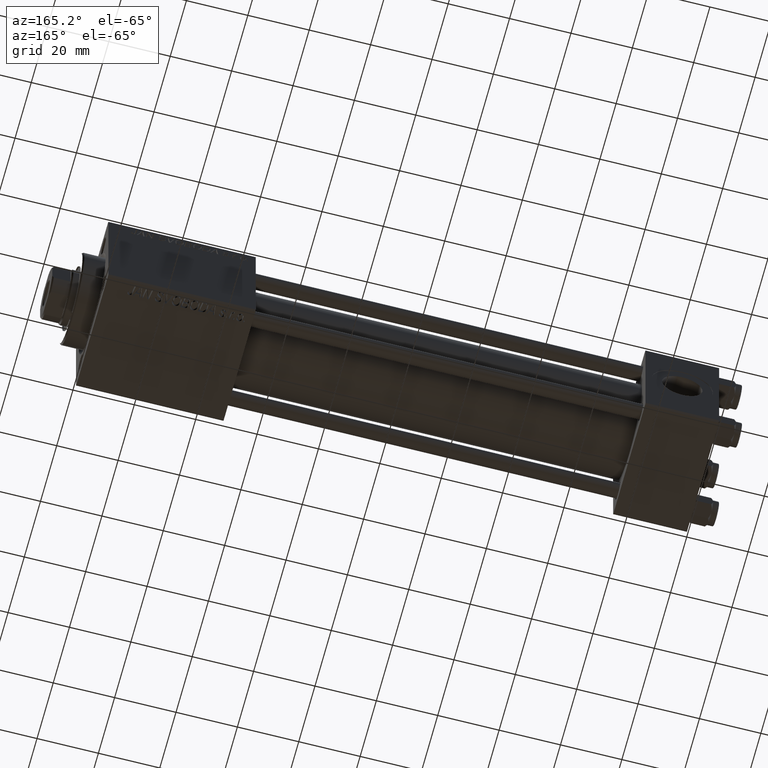
[diagram: clean part render]
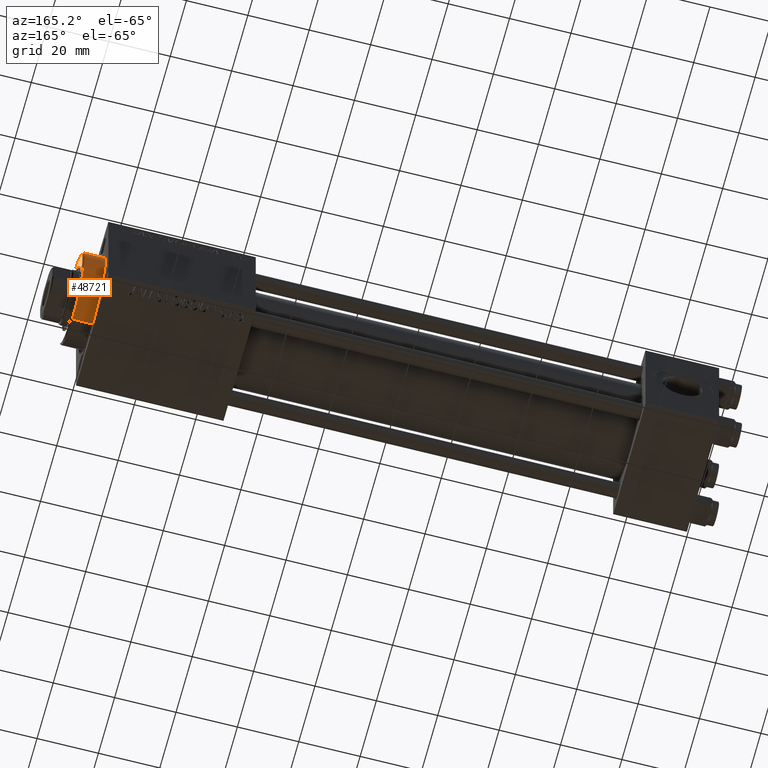
[diagram: same view with one face highlighted and labeled with its STEP entity id]
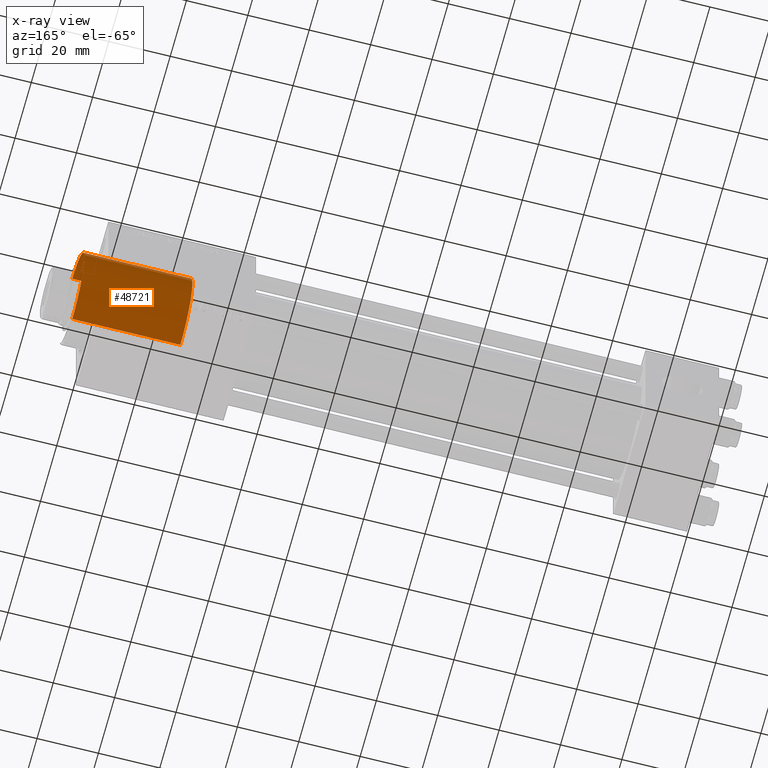
[diagram: x-ray of the same camera — body ghosted, the highlighted face saturated]
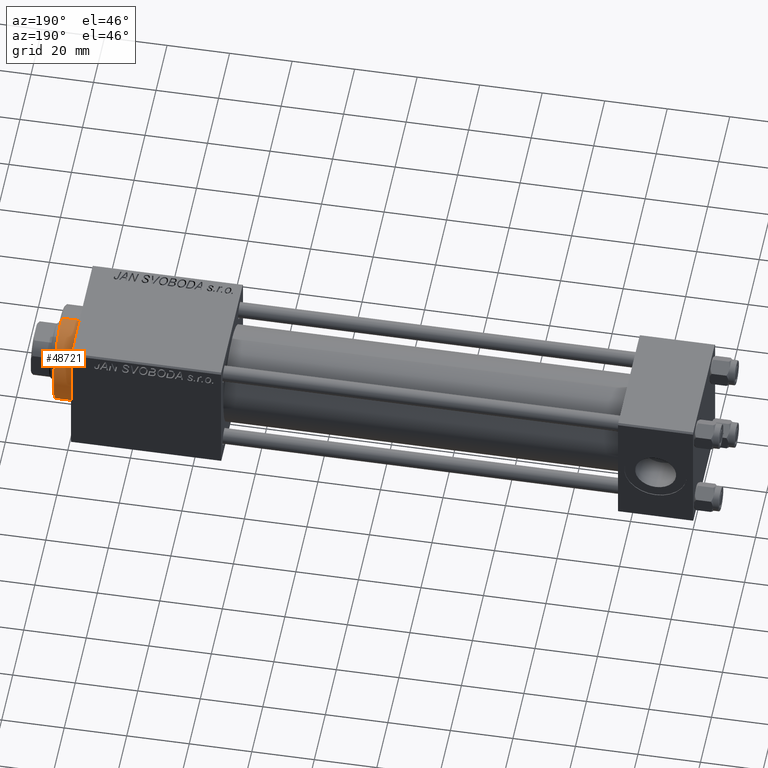
[diagram: same view with one face highlighted and labeled with its STEP entity id]
A machine part, auxiliary view. The second image highlights one B-rep face of the part: STEP entity #48721.
The next image is the same camera in x-ray: the body ghosted, the highlighted face saturated — about 0% of this face is hidden behind the body in this view.
A second angle (auxiliary view) of the same face is appended — the face is thin or edge-on in the first view.
In plain terms, the highlighted cylindrical surface (partial cylindrical patch) has radius 15 mm, axis along (-1, -0, -0).
Its self-contained STEP definition (entity closure, byte-faithful):
#401 = CARTESIAN_POINT ( 'NONE',  ( 0.000000000000000000, 0.000000000000000000, 28.69999999999999929 ) ) ;
#793 = CARTESIAN_POINT ( 'NONE',  ( 15.00000000000000000, 1.836970198721029589E-15, 35.19999999999999574 ) ) ;
#1428 = DIRECTION ( 'NONE',  ( 0.000000000000000000, 0.000000000000000000, 1.000000000000000000 ) ) ;
#1728 = AXIS2_PLACEMENT_3D ( 'NONE', #21349, #1428, #17428 ) ;
#4321 = EDGE_LOOP ( 'NONE', ( #19551, #46568, #47070, #51020 ) ) ;
#4949 = CARTESIAN_POINT ( 'NONE',  ( 0.000000000000000000, 0.000000000000000000, 35.19999999999999574 ) ) ;
#14696 = VECTOR ( 'NONE', #16199, 1000.000000000000000 ) ;
#15077 = VERTEX_POINT ( 'NONE', #28116 ) ;
#16199 = DIRECTION ( 'NONE',  ( -0.000000000000000000, -0.000000000000000000, -1.000000000000000000 ) ) ;
#17106 = CARTESIAN_POINT ( 'NONE',  ( 15.00000000000000000, 1.836970198721029589E-15, 0.000000000000000000 ) ) ;
#17428 = DIRECTION ( 'NONE',  ( 1.000000000000000000, 0.000000000000000000, 0.000000000000000000 ) ) ;
#17613 = CIRCLE ( 'NONE', #23491, 15.00000000000000000 ) ;
#17633 = DIRECTION ( 'NONE',  ( -0.000000000000000000, -0.000000000000000000, -1.000000000000000000 ) ) ;
#18904 = EDGE_CURVE ( 'NONE', #24577, #15077, #36530, .T. ) ;
#18995 = VERTEX_POINT ( 'NONE', #17106 ) ;
#19124 = CARTESIAN_POINT ( 'NONE',  ( 15.00000000000000000, 1.836970198721029589E-15, 28.69999999999999929 ) ) ;
#19551 = ORIENTED_EDGE ( 'NONE', *, *, #31316, .T. ) ;
#20455 = VERTEX_POINT ( 'NONE', #793 ) ;
#21349 = CARTESIAN_POINT ( 'NONE',  ( 0.000000000000000000, 0.000000000000000000, 0.000000000000000000 ) ) ;
#21472 = VECTOR ( 'NONE', #17633, 1000.000000000000000 ) ;
#23491 = AXIS2_PLACEMENT_3D ( 'NONE', #4949, #45356, #49047 ) ;
#24577 = VERTEX_POINT ( 'NONE', #25701 ) ;
#25701 = CARTESIAN_POINT ( 'NONE',  ( -15.00000000000000000, 0.000000000000000000, 35.19999999999999574 ) ) ;
#28116 = CARTESIAN_POINT ( 'NONE',  ( -15.00000000000000000, 0.000000000000000000, 0.000000000000000000 ) ) ;
#31316 = EDGE_CURVE ( 'NONE', #24577, #20455, #17613, .T. ) ;
#32153 = DIRECTION ( 'NONE',  ( -0.000000000000000000, -0.000000000000000000, -1.000000000000000000 ) ) ;
#32734 = CIRCLE ( 'NONE', #1728, 15.00000000000000000 ) ;
#32912 = EDGE_CURVE ( 'NONE', #18995, #15077, #32734, .T. ) ;
#35629 = LINE ( 'NONE', #19124, #14696 ) ;
#35825 = DIRECTION ( 'NONE',  ( -1.000000000000000000, 0.000000000000000000, 0.000000000000000000 ) ) ;
#36327 = CYLINDRICAL_SURFACE ( 'NONE', #45768, 15.00000000000000000 ) ;
#36530 = LINE ( 'NONE', #48621, #21472 ) ;
#40535 = FACE_OUTER_BOUND ( 'NONE', #4321, .T. ) ;
#45356 = DIRECTION ( 'NONE',  ( 0.000000000000000000, 0.000000000000000000, -1.000000000000000000 ) ) ;
#45768 = AXIS2_PLACEMENT_3D ( 'NONE', #401, #32153, #35825 ) ;
#46568 = ORIENTED_EDGE ( 'NONE', *, *, #50115, .T. ) ;
#47070 = ORIENTED_EDGE ( 'NONE', *, *, #32912, .T. ) ;
#48621 = CARTESIAN_POINT ( 'NONE',  ( -15.00000000000000000, 0.000000000000000000, 28.69999999999999929 ) ) ;
#48721 = ADVANCED_FACE ( 'NONE', ( #40535 ), #36327, .T. ) ;
#49047 = DIRECTION ( 'NONE',  ( 1.000000000000000000, 0.000000000000000000, 0.000000000000000000 ) ) ;
#50115 = EDGE_CURVE ( 'NONE', #20455, #18995, #35629, .T. ) ;
#51020 = ORIENTED_EDGE ( 'NONE', *, *, #18904, .F. ) ;